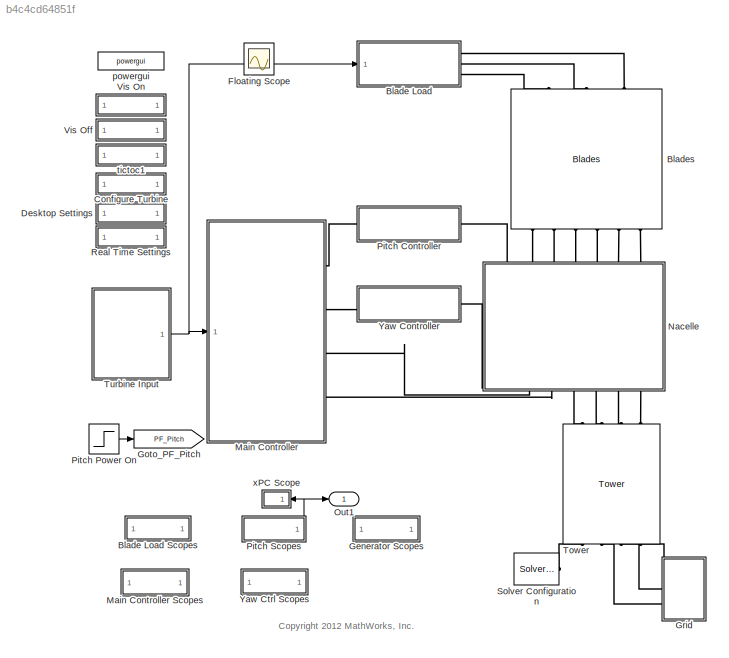
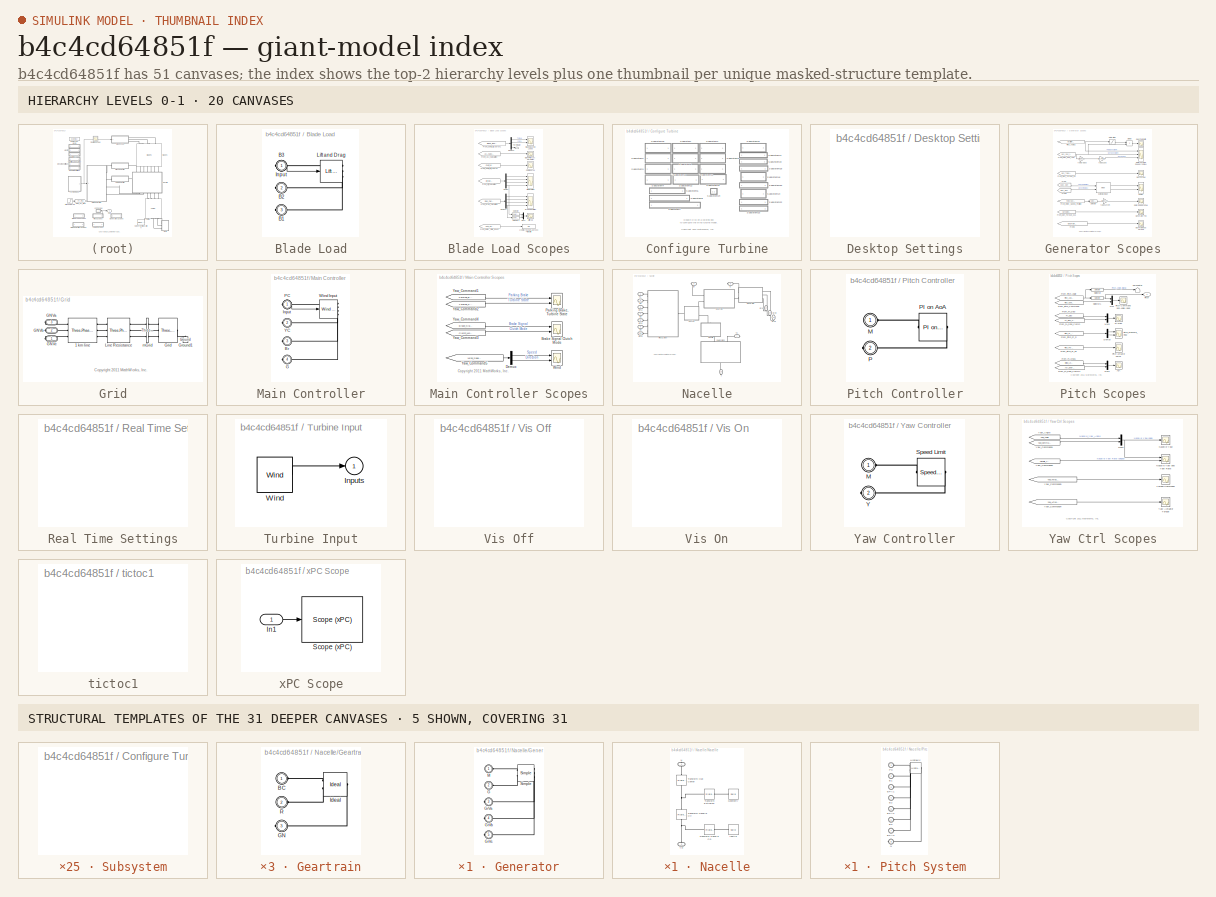
[diagram: thumbnail index - top-2 hierarchy levels (20 canvases) + 5 structural-template representatives of the remaining 31 canvases]
MODEL slx_b4c4cd64851f
KIND model
CONFIG PostLoadFcn = warning off Simulink:blocks:MatchingGotoNotFound\nwarning off Simulink:blocks:MatchingFromNotFound\nwarning('off','Simulink:SL_OutputNotConnected');\nwarning off Simulink:Engine:SaveWithParameterizedLinks_Warning\nwarning off Simulink:Engine:SaveWithDisabledLinks_Warning\nwarning('off','Simulink:fixpoint:fxpParameterPrecisionLoss');\nwarning off Simulink:blocks:DTConversionUncessary\nwarning off ne_sli:s...<+152ch>
CONFIG PreLoadFcn = warning off Simulink:Commands:LoadMdlParameterizedLink
CONFIG StartFcn = tic
CONFIG StopFcn = Elapsed_Sim_Time = toc;\ndisp(['Elapsed time is ' num2str(Elapsed_Sim_Time)]);
BLOCK [SubSystem] Blade Load
  AttributesFormatString = %<BlockChoice>
  BlockChoice = Lift and Drag
  FunctionWithSeparateData = off
  MaskHideContents = off
  MemberBlocks = Lift and Drag,Lift and Drag (Simscape),Segments,Torque
  MinAlgLoopOccurrences = off
  Opaque = off
  Ports = [1, 0, 0, 0, 0, 0, 3]
  PropExecContextOutsideSubsystem = off
  RTWSystemCode = Auto
  RequestExecContextInheritance = off
  TemplateBlock = Wind_Lib/Blade Load
BLOCK [SubSystem] Blade Load Scopes
  AncestorBlock = Wind_Lib/Blade Load Scopes
  FunctionWithSeparateData = off
  MaskHideContents = off
  MinAlgLoopOccurrences = off
  Opaque = off
  Ports = []
  PropExecContextOutsideSubsystem = off
  RTWSystemCode = Auto
  RequestExecContextInheritance = off
BLOCK [Display] Blade Load Scopes/1 = Heli 2 = Young's Approx 3 = Windmill
  Decimation = 1
  Lockdown = off
  Ports = [1]
BLOCK [Scope] Blade Load Scopes/Blade Bearing Loads
  DataFormat = StructureWithTime
  Floating = off
  LimitDataPoints = off
  NumInputPorts = 2
  Ports = [2]
  SampleTime = 0
  SaveName = ScopeData10
  ShowLegends = off
  TimeRange = 80
  YMax = 4000000~500000
  YMin = -2000000~-500000
  ZoomMode = yonly
BLOCK [Scope] Blade Load Scopes/Blade Pitch, AoA Zero Pitch
  DataFormat = StructureWithTime
  Floating = off
  LimitDataPoints = off
  NumInputPorts = 1
  Ports = [1]
  SampleTime = 0
  SaveName = ScopeData3
  ShowLegends = off
  TimeRange = 400
  YMax = 100
  YMin = 0
  ZoomMode = yonly
BLOCK [Scope] Blade Load Scopes/Coeff Approx
  DataFormat = StructureWithTime
  Floating = off
  LimitDataPoints = off
  NumInputPorts = 1
  Ports = [1]
  SampleTime = 0
  SaveName = ScopeData4
  ShowLegends = off
  TimeRange = 400
  YMax = 0.01794057021302797
  YMin = -0.1139986551164904
  ZoomMode = yonly
BLOCK [Demux] Blade Load Scopes/Demux
  DisplayOption = bar
  Outputs = [1 3 3 3]
  Ports = [1, 4]
BLOCK [Demux] Blade Load Scopes/Demux1
  DisplayOption = bar
  Outputs = [1 3 3 3]
  Ports = [1, 4]
BLOCK [Demux] Blade Load Scopes/Demux2
  DisplayOption = bar
  Outputs = [3 3 12]
  Ports = [1, 3]
BLOCK [Scope] Blade Load Scopes/Drag Calculation
  DataFormat = StructureWithTime
  Floating = off
  LimitDataPoints = off
  NumInputPorts = 4
  Ports = [4]
  SampleTime = 0
  SaveName = ScopeData5
  ShowLegends = off
  TimeRange = 400
  YMax = 4000~100~6000~6000
  YMin = -2000~-50~0~0
  ZoomMode = yonly
BLOCK [From] Blade Load Scopes/From_AoA_Calculation
  CloseFcn = tagdialog Close
  GotoTag = AoA_Calculation
BLOCK [From] Blade Load Scopes/From_Coeff_Lift_Approx
  CloseFcn = tagdialog Close
  GotoTag = Coeff_Lift_Approx
BLOCK [From] Blade Load Scopes/From_Coeff_Lift_Approx1
  CloseFcn = tagdialog Close
  GotoTag = Blade_Bearing_Loads
  TagVisibility = global
BLOCK [From] Blade Load Scopes/From_Drag_Calculation
  CloseFcn = tagdialog Close
  GotoTag = Drag_Calculation
BLOCK [From] Blade Load Scopes/From_Lift_Calculation
  CloseFcn = tagdialog Close
  GotoTag = Lift_Calculation
BLOCK [From] Blade Load Scopes/From_Rotor_State_Enum
  CloseFcn = tagdialog Close
  GotoTag = Rotor_State_Enum
BLOCK [Scope] Blade Load Scopes/Lift Calculation
  DataFormat = StructureWithTime
  Floating = off
  LimitDataPoints = off
  NumInputPorts = 4
  Ports = [4]
  SampleTime = 0
  SaveName = ScopeData2
  ShowLegends = off
  TimeRange = 400
  YMax = 2000~100~1.5~100000
  YMin = 0~-50~-0.5~-50000
  ZoomMode = yonly
BLOCK [Scope] Blade Load Scopes/Lift, Drag
  DataFormat = StructureWithTime
  Floating = off
  LimitDataPoints = off
  NumInputPorts = 1
  Ports = [1]
  SampleTime = 0
  SaveName = ScopeData1
  ShowLegends = off
  TimeRange = 160
  YMax = 408.3026221352307
  YMin = -250.4351759669439
  ZoomMode = yonly
BLOCK [Mux] Blade Load Scopes/Mux1
  DisplayOption = bar
  Inputs = 2
  Ports = [2, 1]
BLOCK [Selector] Blade Load Scopes/Selector
  IndexOptions = Index vector (dialog)
  Indices = [1]
  InputPortWidth = 3
  OutputSizes = 1
  Ports = [1, 1]
BLOCK [Selector] Blade Load Scopes/Selector1
  IndexOptions = Index vector (dialog)
  Indices = [1 3]
  InputPortWidth = 3
  OutputSizes = 1
  Ports = [1, 1]
BLOCK [Terminator] Blade Load Scopes/Terminator
BLOCK [PMIOPort] Blade Load/B1
  Port = 3
  Side = Right
BLOCK [PMIOPort] Blade Load/B2
  Port = 2
  Side = Right
BLOCK [PMIOPort] Blade Load/B3
  Port = 1
  Side = Right
BLOCK [Inport] Blade Load/Input
  IconDisplay = Port number
BLOCK [Reference] Blade Load/Lift and Drag  REF=Wind_Lib/Lift and Drag
  FunctionWithSeparateData = off
  GeneratePreprocessorConditionals = off
  Ports = [1, 0, 0, 0, 0, 0, 3]
  ShowPortLabels = FromPortIcon
  SourceBlock = Wind_Lib/Lift and Drag
  SystemSampleTime = -1
BLOCK [Reference] Blades  REF=Blades_Lib/Blades
  FunctionWithSeparateData = off
  GeneratePreprocessorConditionals = off
  Ports = [0, 0, 0, 0, 0, 6, 3]
  ShowPortLabels = FromPortBlockName
  SourceBlock = Blades_Lib/Blades
  SystemSampleTime = -1
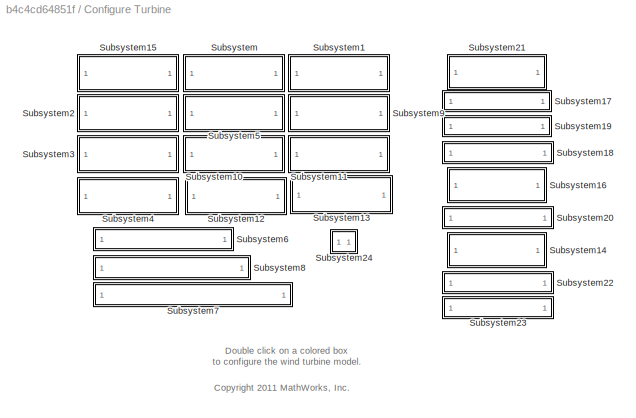
BLOCK [SubSystem] Configure Turbine
  FunctionWithSeparateData = off
  MaskHideContents = off
  MinAlgLoopOccurrences = off
  Opaque = off
  Ports = []
  PropExecContextOutsideSubsystem = off
  RTWSystemCode = Auto
  RequestExecContextInheritance = off
BLOCK [SubSystem] Configure Turbine/Subsystem
  FunctionWithSeparateData = off
  MaskHideContents = off
  MinAlgLoopOccurrences = off
  Opaque = off
  OpenFcn = Select_Turbine_Systems('I_Pitch Test', WT_Configs)
  Ports = []
  PropExecContextOutsideSubsystem = off
  RTWSystemCode = Auto
  RequestExecContextInheritance = off
BLOCK [SubSystem] Configure Turbine/Subsystem1
  FunctionWithSeparateData = off
  MaskHideContents = off
  MinAlgLoopOccurrences = off
  Opaque = off
  OpenFcn = Select_Turbine_Systems('H_Pitch Test', WT_Configs)
  Ports = []
  PropExecContextOutsideSubsystem = off
  RTWSystemCode = Auto
  RequestExecContextInheritance = off
BLOCK [SubSystem] Configure Turbine/Subsystem10
  FunctionWithSeparateData = off
  MaskHideContents = off
  MinAlgLoopOccurrences = off
  Opaque = off
  OpenFcn = Select_Turbine_Systems('I_Pitch IM_Yaw Test', WT_Configs)
  Ports = []
  PropExecContextOutsideSubsystem = off
  RTWSystemCode = Auto
  RequestExecContextInheritance = off
BLOCK [SubSystem] Configure Turbine/Subsystem11
  FunctionWithSeparateData = off
  MaskHideContents = off
  MinAlgLoopOccurrences = off
  Opaque = off
  OpenFcn = Select_Turbine_Systems('H_Pitch IM_Yaw Test', WT_Configs)
  Ports = []
  PropExecContextOutsideSubsystem = off
  RTWSystemCode = Auto
  RequestExecContextInheritance = off
BLOCK [SubSystem] Configure Turbine/Subsystem12
  FunctionWithSeparateData = off
  MaskHideContents = off
  MinAlgLoopOccurrences = off
  Opaque = off
  OpenFcn = Select_Turbine_Systems('I_Pitch S_Yaw Test', WT_Configs)
  Ports = []
  PropExecContextOutsideSubsystem = off
  RTWSystemCode = Auto
  RequestExecContextInheritance = off
BLOCK [SubSystem] Configure Turbine/Subsystem13
  FunctionWithSeparateData = off
  MaskHideContents = off
  MinAlgLoopOccurrences = off
  Opaque = off
  OpenFcn = Select_Turbine_Systems('H_Pitch S_Yaw Test', WT_Configs)
  Ports = []
  PropExecContextOutsideSubsystem = off
  RTWSystemCode = Auto
  RequestExecContextInheritance = off
BLOCK [SubSystem] Configure Turbine/Subsystem14
  FunctionWithSeparateData = off
  MaskHideContents = off
  MinAlgLoopOccurrences = off
  Opaque = off
  OpenFcn = Compare_Yaw_Actuators;
  Ports = []
  PropExecContextOutsideSubsystem = off
  RTWSystemCode = Auto
  RequestExecContextInheritance = off
BLOCK [SubSystem] Configure Turbine/Subsystem15
  FunctionWithSeparateData = off
  MaskHideContents = off
  MinAlgLoopOccurrences = off
  Opaque = off
  Ports = []
  PropExecContextOutsideSubsystem = off
  RTWSystemCode = Auto
  RequestExecContextInheritance = off
BLOCK [SubSystem] Configure Turbine/Subsystem16
  FunctionWithSeparateData = off
  MaskHideContents = off
  MinAlgLoopOccurrences = off
  Opaque = off
  OpenFcn = Compare_Pitch_Actuators;
  Ports = []
  PropExecContextOutsideSubsystem = off
  RTWSystemCode = Auto
  RequestExecContextInheritance = off
BLOCK [SubSystem] Configure Turbine/Subsystem17
  FunctionWithSeparateData = off
  MaskHideContents = off
  MinAlgLoopOccurrences = off
  Opaque = off
  OpenFcn = Pitch_Actuation_Linkage
  Ports = []
  PropExecContextOutsideSubsystem = off
  RTWSystemCode = Auto
  RequestExecContextInheritance = off
BLOCK [SubSystem] Configure Turbine/Subsystem18
  FunctionWithSeparateData = off
  MaskHideContents = off
  MinAlgLoopOccurrences = off
  Opaque = off
  OpenFcn = Pitch_Actuation_Hydraulic_Testrig
  Ports = []
  PropExecContextOutsideSubsystem = off
  RTWSystemCode = Auto
  RequestExecContextInheritance = off
BLOCK [SubSystem] Configure Turbine/Subsystem19
  FunctionWithSeparateData = off
  MaskHideContents = off
  MinAlgLoopOccurrences = off
  Opaque = off
  OpenFcn = Pitch_Control_Ideal_Testrig
  Ports = []
  PropExecContextOutsideSubsystem = off
  RTWSystemCode = Auto
  RequestExecContextInheritance = off
BLOCK [SubSystem] Configure Turbine/Subsystem2
  FunctionWithSeparateData = off
  MaskHideContents = off
  MinAlgLoopOccurrences = off
  Opaque = off
  OpenFcn = Select_Turbine_Systems('IA_Yaw Test', WT_Configs)
  Ports = []
  PropExecContextOutsideSubsystem = off
  RTWSystemCode = Auto
  RequestExecContextInheritance = off
BLOCK [SubSystem] Configure Turbine/Subsystem20
  FunctionWithSeparateData = off
  MaskHideContents = off
  MinAlgLoopOccurrences = off
  Opaque = off
  OpenFcn = Yaw_Actuation_Testrig
  Ports = []
  PropExecContextOutsideSubsystem = off
  RTWSystemCode = Auto
  RequestExecContextInheritance = off
BLOCK [SubSystem] Configure Turbine/Subsystem21
  FunctionWithSeparateData = off
  MaskHideContents = off
  MinAlgLoopOccurrences = off
  Opaque = off
  Ports = []
  PropExecContextOutsideSubsystem = off
  RTWSystemCode = Auto
  RequestExecContextInheritance = off
BLOCK [SubSystem] Configure Turbine/Subsystem22
  FunctionWithSeparateData = off
  MaskHideContents = off
  MinAlgLoopOccurrences = off
  Opaque = off
  OpenFcn = Generator_Testrig
  Ports = []
  PropExecContextOutsideSubsystem = off
  RTWSystemCode = Auto
  RequestExecContextInheritance = off
BLOCK [SubSystem] Configure Turbine/Subsystem23
  FunctionWithSeparateData = off
  MaskHideContents = off
  MinAlgLoopOccurrences = off
  Opaque = off
  OpenFcn = Turbine_State_Machine_Testrig
  Ports = []
  PropExecContextOutsideSubsystem = off
  RTWSystemCode = Auto
  RequestExecContextInheritance = off
BLOCK [SubSystem] Configure Turbine/Subsystem24
  FunctionWithSeparateData = off
  MaskHideContents = off
  MinAlgLoopOccurrences = off
  Opaque = off
  OpenFcn = Select_Turbine_Systems('H_Pitch S_Yaw Ge Gn Lift_Drag', WT_Configs)
  Ports = []
  PropExecContextOutsideSubsystem = off
  RTWSystemCode = Auto
  RequestExecContextInheritance = off
BLOCK [SubSystem] Configure Turbine/Subsystem3
  FunctionWithSeparateData = off
  MaskHideContents = off
  MinAlgLoopOccurrences = off
  Opaque = off
  OpenFcn = Select_Turbine_Systems('IM_Yaw Test', WT_Configs)
  Ports = []
  PropExecContextOutsideSubsystem = off
  RTWSystemCode = Auto
  RequestExecContextInheritance = off
BLOCK [SubSystem] Configure Turbine/Subsystem4
  FunctionWithSeparateData = off
  MaskHideContents = off
  MinAlgLoopOccurrences = off
  Opaque = off
  OpenFcn = Select_Turbine_Systems('S_Yaw Test', WT_Configs)
  Ports = []
  PropExecContextOutsideSubsystem = off
  RTWSystemCode = Auto
  RequestExecContextInheritance = off
BLOCK [SubSystem] Configure Turbine/Subsystem5
  FunctionWithSeparateData = off
  MaskHideContents = off
  MinAlgLoopOccurrences = off
  Opaque = off
  OpenFcn = Select_Turbine_Systems('I_Pitch IA_Yaw Test', WT_Configs)
  Ports = []
  PropExecContextOutsideSubsystem = off
  RTWSystemCode = Auto
  RequestExecContextInheritance = off
BLOCK [SubSystem] Configure Turbine/Subsystem6
  FunctionWithSeparateData = off
  MaskHideContents = off
  MinAlgLoopOccurrences = off
  Opaque = off
  OpenFcn = Select_Turbine_Systems('I_Pitch IA_Yaw Lift_Drag', WT_Configs)
  Ports = []
  PropExecContextOutsideSubsystem = off
  RTWSystemCode = Auto
  RequestExecContextInheritance = off
BLOCK [SubSystem] Configure Turbine/Subsystem7
  FunctionWithSeparateData = off
  MaskHideContents = off
  MinAlgLoopOccurrences = off
  Opaque = off
  OpenFcn = Select_Turbine_Systems('I_Pitch IA_Yaw Ge Gn Lift_Drag', WT_Configs)
  Ports = []
  PropExecContextOutsideSubsystem = off
  RTWSystemCode = Auto
  RequestExecContextInheritance = off
BLOCK [SubSystem] Configure Turbine/Subsystem8
  FunctionWithSeparateData = off
  MaskHideContents = off
  MinAlgLoopOccurrences = off
  Opaque = off
  OpenFcn = Select_Turbine_Systems('I_Pitch IA_Yaw Ge Lift_Drag', WT_Configs)
  Ports = []
  PropExecContextOutsideSubsystem = off
  RTWSystemCode = Auto
  RequestExecContextInheritance = off
BLOCK [SubSystem] Configure Turbine/Subsystem9
  FunctionWithSeparateData = off
  MaskHideContents = off
  MinAlgLoopOccurrences = off
  Opaque = off
  OpenFcn = Select_Turbine_Systems('H_Pitch IA_Yaw Test', WT_Configs)
  Ports = []
  PropExecContextOutsideSubsystem = off
  RTWSystemCode = Auto
  RequestExecContextInheritance = off
BLOCK [SubSystem] Desktop Settings
  FunctionWithSeparateData = off
  MaskHideContents = off
  MinAlgLoopOccurrences = off
  Opaque = off
  OpenFcn = set_param(bdroot,'Solver','ODE23t','MaxStep','0.01');                            \n                                                                                 \ntvar_solverBlock = find_system(bdroot, 'SubClassName', 'solver');                \n                                                                                 \nfor i=1:size(tvar_solverBlock,1)                                        ...<+360ch>
  Ports = []
  PropExecContextOutsideSubsystem = off
  RTWSystemCode = Auto
  RequestExecContextInheritance = off
BLOCK [Scope] Floating Scope
  DataFormat = StructureWithTime
  Floating = on
  IOType = viewer
  NumInputPorts = 1
  Ports = []
  SampleTime = 0
  ShowLegends = off
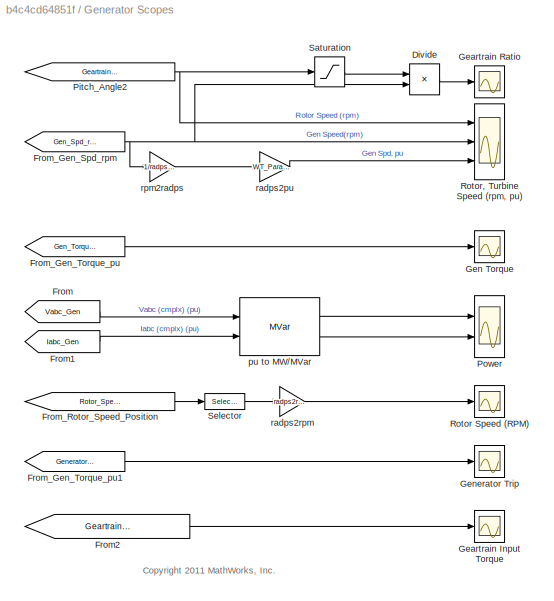
BLOCK [SubSystem] Generator Scopes
  AncestorBlock = Generator_Lib/Generator Scopes
  FunctionWithSeparateData = off
  MaskHideContents = off
  MinAlgLoopOccurrences = off
  Opaque = off
  Ports = []
  PropExecContextOutsideSubsystem = off
  RTWSystemCode = Auto
  RequestExecContextInheritance = off
BLOCK [Product] Generator Scopes/Divide
  InputSameDT = off
  Inputs = /*
  OutDataTypeStr = Inherit: Inherit via internal rule
  Ports = [2, 1]
  RndMeth = Floor
  SaturateOnIntegerOverflow = off
BLOCK [From] Generator Scopes/From
  CloseFcn = tagdialog Close
  GotoTag = Vabc_Gen
  TagVisibility = global
BLOCK [From] Generator Scopes/From1
  CloseFcn = tagdialog Close
  GotoTag = Iabc_Gen
  TagVisibility = global
BLOCK [From] Generator Scopes/From2
  CloseFcn = tagdialog Close
  GotoTag = Geartrain_Input_Torque
  TagVisibility = global
BLOCK [From] Generator Scopes/From_Gen_Spd_rpm
  CloseFcn = tagdialog Close
  GotoTag = Gen_Spd_rpm
  TagVisibility = global
BLOCK [From] Generator Scopes/From_Gen_Torque_pu
  CloseFcn = tagdialog Close
  GotoTag = Gen_Torque_pu
  TagVisibility = global
BLOCK [From] Generator Scopes/From_Gen_Torque_pu1
  CloseFcn = tagdialog Close
  GotoTag = Generator_Trip
BLOCK [From] Generator Scopes/From_Rotor_Speed_Position
  CloseFcn = tagdialog Close
  GotoTag = Rotor_Speed_Position
  TagVisibility = global
BLOCK [Scope] Generator Scopes/Geartrain Input Torque
  DataFormat = StructureWithTime
  Floating = off
  LimitDataPoints = off
  NumInputPorts = 1
  Ports = [1]
  SampleTime = 0
  SaveName = Geartrain_Input_Torque_DATA
  SaveToWorkspace = on
  ShowLegends = off
  TimeRange = 80
  YMax = -2250
  YMin = -4000
  ZoomMode = xonly
BLOCK [Scope] Generator Scopes/Geartrain Ratio
  DataFormat = StructureWithTime
  Floating = off
  LimitDataPoints = off
  NumInputPorts = 1
  Ports = [1]
  SampleTime = 0
  SaveName = ScopeData4
  ShowLegends = off
  YMax = 85
  YMin = 70
  ZoomMode = yonly
BLOCK [Scope] Generator Scopes/Gen Torque
  DataFormat = StructureWithTime
  Floating = off
  LimitDataPoints = off
  NumInputPorts = 1
  Ports = [1]
  SampleTime = 0
  SaveName = ScopeData8
  ShowLegends = off
  ZoomMode = yonly
BLOCK [Scope] Generator Scopes/Generator Trip
  DataFormat = StructureWithTime
  Floating = off
  LimitDataPoints = off
  NumInputPorts = 1
  Ports = [1]
  SampleTime = 0
  SaveName = Generator_Trip_DATA
  SaveToWorkspace = on
  ShowLegends = off
  ZoomMode = yonly
BLOCK [From] Generator Scopes/Pitch_Angle2
  CloseFcn = tagdialog Close
  GotoTag = Geartrain_Input_Speed
  TagVisibility = global
BLOCK [Scope] Generator Scopes/Power
  DataFormat = StructureWithTime
  Floating = off
  LimitDataPoints = off
  NumInputPorts = 2
  Ports = [2]
  SampleTime = 0
  SaveName = Generator_Power_DATA
  SaveToWorkspace = on
  ShowLegends = off
  TimeRange = 80
  YMax = 4000000~0
  YMin = -6000000~-6000000
  ZoomMode = yonly
BLOCK [Scope] Generator Scopes/Rotor Speed (RPM)
  DataFormat = StructureWithTime
  Floating = off
  LimitDataPoints = off
  NumInputPorts = 1
  Ports = [1]
  SampleTime = 0
  SaveName = ScopeData6
  ShowLegends = off
  TimeRange = 80
  YMax = 15
  YMin = 0
  ZoomMode = yonly
BLOCK [Scope] Generator Scopes/Rotor, Turbine Speed (rpm, pu)
  DataFormat = StructureWithTime
  Floating = off
  LimitDataPoints = off
  NumInputPorts = 3
  Ports = [3]
  SampleTime = 0
  SaveName = Generator_Speed_DATA
  SaveToWorkspace = on
  ShowLegends = off
  YMax = 15.5~1300~1.1
  YMin = 13.5~1100~0.9
  ZoomMode = yonly
BLOCK [Saturate] Generator Scopes/Saturation
  InputPortMap = u0
  LowerLimit = eps
  Ports = [1, 1]
  UpperLimit = inf
BLOCK [Selector] Generator Scopes/Selector
  IndexOptions = Index vector (dialog)
  Indices = [2]
  InputPortWidth = 2
  OutputSizes = 1
  Ports = [1, 1]
BLOCK [Reference] Generator Scopes/pu to MW//MVar  REF=Generator_Lib/Generator Scopes/pu to MW//MVar
  Ports = [2, 2]
  SourceBlock = Generator_Lib/Generator Scopes/pu to MW//MVar
  SourceType = SubSystem
BLOCK [Gain] Generator Scopes/radps2pu
  Gain = WT_Params.Generator.radps2pu
  OutDataTypeStr = Inherit: Inherit via internal rule
  ParamDataTypeStr = Inherit: Inherit via internal rule
  SaturateOnIntegerOverflow = off
BLOCK [Gain] Generator Scopes/radps2rpm
  Gain = radps2rpm
  OutDataTypeStr = Inherit: Inherit via internal rule
  ParamDataTypeStr = Inherit: Inherit via internal rule
  SaturateOnIntegerOverflow = off
BLOCK [Gain] Generator Scopes/rpm2radps
  Gain = 1/radps2rpm
  OutDataTypeStr = Inherit: Inherit via internal rule
  ParamDataTypeStr = Inherit: Inherit via internal rule
  SaturateOnIntegerOverflow = off
BLOCK [Goto] Goto_PF_Pitch
  GotoTag = PF_Pitch
  TagVisibility = global
BLOCK [SubSystem] Grid
  FunctionWithSeparateData = off
  MaskHideContents = off
  MinAlgLoopOccurrences = off
  Opaque = off
  Ports = [0, 0, 0, 0, 0, 0, 3]
  PropExecContextOutsideSubsystem = off
  RTWSystemCode = Auto
  RequestExecContextInheritance = off
BLOCK [Reference] Grid/1 km line   REF=powerlib/Elements/Three-Phase
PI Section Line
  AttributesFormatString = \n
  Capacitances = [11.33e-009 5.01e-009]
  Frequency = WT_Params.Grid.frequency
  Inductances = [1.05e-3 3.32e-3]
  LConnTagsString = a|b|c
  Length = 1
  Ports = [0, 0, 0, 0, 0, 3, 3]
  RConnTagsString = A|B|C
  Resistances = [0.1153 0.413]
  SourceBlock = powerlib/Elements/Three-Phase\nPI Section Line
  SourceType = Three-Phase PI Section Line
BLOCK [PMIOPort] Grid/GNVa
  Port = 3
  Side = Right
BLOCK [PMIOPort] Grid/GNVb
  Port = 2
  Side = Right
BLOCK [PMIOPort] Grid/GNVc
  Port = 1
  Side = Right
BLOCK [Reference] Grid/Grid  REF=powerlib/Electrical
Sources/Three-Phase
Programmable
Voltage Source
  Amplitudes = [1.0  0.5  1.0 ]
  BusType = swing
  HarmonicA = [1 -0.1 0 1]
  HarmonicB = [2 0.15 35 2]
  HarmonicGeneration = off
  Ports = [0, 0, 0, 0, 0, 1, 3]
  PositiveSequence = [WT_Params.Grid.voltage 0 WT_Params.Grid.frequency]
  Pref = 0
  Qmax = inf
  Qmin = -inf
  Qref = 0
  SourceBlock = powerlib/Electrical\nSources/Three-Phase\nProgrammable\nVoltage Source
  SourceType = Three-Phase Programmable Voltage Source
  TimeValues = [0  10  10.1]
  Timing = [5  5.5]
  VariationEntity = None
  VariationFrequency = 2
  VariationMagnitude = 0.3
  VariationPhaseA = off
  VariationRate = 10
  VariationStep = -0.15
  VariationTiming = [5 5.5]
  VariationType = Table of time-amplitude pairs
  VariationTypeAlt = Step
BLOCK [Reference] Grid/Ground1  REF=powerlib/Elements/Ground
  AttributesFormatString = \n
  LConnTagsString = a
  Ports = [0, 0, 0, 0, 0, 1]
  SourceBlock = powerlib/Elements/Ground
  SourceType = Ground
BLOCK [Reference] Grid/Line Resistance  REF=powerlib/Elements/Three-Phase
Mutual Inductance
Z1-Z0
  AttributesFormatString = \n
  LConnTagsString = a|b|c
  Ports = [0, 0, 0, 0, 0, 3, 3]
  PositiveSequence = [0.1  1.0/(2*pi*60)]*WT_Params.Grid.voltage^2/2500e6
  RConnTagsString = A|B|C
  SourceBlock = powerlib/Elements/Three-Phase\nMutual Inductance\nZ1-Z0
  SourceType = Three-Phase Mutual Inductance Z1-Z0
  ZeroSequence = [0.3  3.0/(2*pi*60)]*WT_Params.Grid.voltage^2/2500e6
BLOCK [Reference] Grid/mGrid  REF=powerlib/Measurements/Three-Phase
V-I Measurement
  CurrentMeasurement = no
  Ipu = off
  LabelI = ImGrid
  LabelV = VmGrid
  OutputType = Magnitude
  PSBequivalent = 0
  Pbase = 1.5e6/0.9
  PhasorSimulation = on
  Ports = [0, 0, 0, 0, 0, 3, 3]
  SetLabelI = on
  SetLabelV = on
  SourceBlock = powerlib/Measurements/Three-Phase\nV-I Measurement
  SourceType = Three-Phase VI Measurement
  Vbase = 25e3
  VoltageMeasurement = phase-to-ground
  Vpu = on
  VpuLL = off
BLOCK [SubSystem] Main Controller
  AttributesFormatString = %<BlockChoice>
  BlockChoice = Wind Input
  FunctionWithSeparateData = off
  MaskHideContents = off
  MemberBlocks = Direct Input,Wind Input
  MinAlgLoopOccurrences = off
  Opaque = off
  Ports = [1, 0, 0, 0, 0, 0, 4]
  PropExecContextOutsideSubsystem = off
  RTWSystemCode = Auto
  RequestExecContextInheritance = off
  TemplateBlock = Main_Controller_Lib/Main Controller
BLOCK [SubSystem] Main Controller Scopes
  AncestorBlock = Main_Controller_Lib/Main Controller Scopes
  FunctionWithSeparateData = off
  MaskHideContents = off
  MinAlgLoopOccurrences = off
  Opaque = off
  Ports = []
  PropExecContextOutsideSubsystem = off
  RTWSystemCode = Auto
  RequestExecContextInheritance = off
BLOCK [Scope] Main Controller Scopes/Brake Signal Clutch Mode
  DataFormat = StructureWithTime
  Floating = off
  LimitDataPoints = off
  NumInputPorts = 2
  Ports = [2]
  SampleTime = 0
  SaveName = ScopeData9
  ShowLegends = off
  TimeRange = 80
  YMax = 1~3
  YMin = -1~1
BLOCK [Demux] Main Controller Scopes/Demux
  DisplayOption = bar
  Outputs = 2
  Ports = [1, 2]
BLOCK [Scope] Main Controller Scopes/Parking Brake, Turbine State
  DataFormat = StructureWithTime
  Floating = off
  LimitDataPoints = off
  NumInputPorts = 2
  Ports = [2]
  SampleTime = 0
  SaveName = ScopeData7
  ShowLegends = off
  TimeRange = 80
  YMax = 1~3
  YMin = 0~0
BLOCK [Scope] Main Controller Scopes/Wind
  DataFormat = StructureWithTime
  Floating = off
  LimitDataPoints = off
  NumInputPorts = 2
  Ports = [2]
  SampleTime = 0
  SaveName = Wind_Turbine_Wind_DATA
  SaveToWorkspace = on
  ShowLegends = off
  TimeRange = 80
  YMax = 20~5
  YMin = 0~-5
BLOCK [From] Main Controller Scopes/Yaw_Command1
  CloseFcn = tagdialog Close
  GotoTag = Parking_Brake
  TagVisibility = global
BLOCK [From] Main Controller Scopes/Yaw_Command2
  CloseFcn = tagdialog Close
  GotoTag = Turbine_State
  TagVisibility = global
BLOCK [From] Main Controller Scopes/Yaw_Command3
  CloseFcn = tagdialog Close
  GotoTag = Clutch_Mode
BLOCK [From] Main Controller Scopes/Yaw_Command4
  CloseFcn = tagdialog Close
  GotoTag = Brake_Signal
  TagVisibility = global
BLOCK [From] Main Controller Scopes/Yaw_Command5
  CloseFcn = tagdialog Close
  GotoTag = Wind_Speed_Direction
  TagVisibility = global
BLOCK [PMIOPort] Main Controller/Br
  Port = 3
  Side = Right
BLOCK [PMIOPort] Main Controller/G
  Port = 4
  Side = Right
BLOCK [Inport] Main Controller/Input
  IconDisplay = Port number
BLOCK [PMIOPort] Main Controller/PC
  Port = 1
  Side = Right
BLOCK [Reference] Main Controller/Wind Input  REF=Main_Controller_Lib/Wind Input
  FunctionWithSeparateData = off
  GeneratePreprocessorConditionals = off
  Ports = [1, 0, 0, 0, 0, 0, 4]
  ShowPortLabels = FromPortIcon
  SourceBlock = Main_Controller_Lib/Wind Input
  SystemSampleTime = -1
BLOCK [PMIOPort] Main Controller/YC
  Port = 2
  Side = Right
BLOCK [SubSystem] Nacelle
  FunctionWithSeparateData = off
  MaskHideContents = off
  MinAlgLoopOccurrences = off
  Opaque = off
  Ports = [0, 0, 0, 0, 0, 7, 7]
  PropExecContextOutsideSubsystem = off
  RTWSystemCode = Auto
  RequestExecContextInheritance = off
BLOCK [PMIOPort] Nacelle/B1
  Port = 2
  Side = Left
  Tag = PMCPort
BLOCK [PMIOPort] Nacelle/B2
  Port = 4
  Side = Left
  Tag = PMCPort
BLOCK [PMIOPort] Nacelle/B3
  Port = 6
  Side = Left
  Tag = PMCPort
BLOCK [PMIOPort] Nacelle/BPA1
  Port = 3
  Side = Left
  Tag = PMCPort
BLOCK [PMIOPort] Nacelle/BPA2
  Port = 5
  Side = Left
  Tag = PMCPort
BLOCK [PMIOPort] Nacelle/BPA3
  Port = 12
  Side = Left
  Tag = PMCPort
BLOCK [PMIOPort] Nacelle/Br
  Port = 8
  Side = Right
  Tag = PMCPort
BLOCK [PMIOPort] Nacelle/G
  Port = 9
  Side = Right
  Tag = PMCPort
BLOCK [SubSystem] Nacelle/Geartrain
  AttributesFormatString = %<BlockChoice>
  BlockChoice = Ideal
  FunctionWithSeparateData = off
  MaskHideContents = off
  MemberBlocks = Empty,Ideal
  MinAlgLoopOccurrences = off
  Opaque = off
  Ports = [0, 0, 0, 0, 0, 2, 1]
  PropExecContextOutsideSubsystem = off
  RTWSystemCode = Auto
  RequestExecContextInheritance = off
  ShowPortLabels = FromPortBlockName
  TemplateBlock = Geartrain_Lib/Geartrain
BLOCK [PMIOPort] Nacelle/Geartrain/BC
  Port = 1
  Side = Left
BLOCK [PMIOPort] Nacelle/Geartrain/GN
  Port = 3
  Side = Right
BLOCK [Reference] Nacelle/Geartrain/Ideal  REF=Geartrain_Lib/Ideal
  FunctionWithSeparateData = off
  GeneratePreprocessorConditionals = off
  Ports = [0, 0, 0, 0, 0, 2, 1]
  ShowPortLabels = FromPortIcon
  SourceBlock = Geartrain_Lib/Ideal
  SystemSampleTime = -1
BLOCK [PMIOPort] Nacelle/Geartrain/R
  Port = 2
  Side = Left
BLOCK [SubSystem] Nacelle/Generator
  AttributesFormatString = %<BlockChoice>
  BlockChoice = Simple
  FunctionWithSeparateData = off
  MaskHideContents = off
  MemberBlocks = Full,Simple
  MinAlgLoopOccurrences = off
  Opaque = off
  Ports = [0, 0, 0, 0, 0, 2, 3]
  PropExecContextOutsideSubsystem = off
  RTWSystemCode = Auto
  RequestExecContextInheritance = off
  TemplateBlock = Generator_Lib/Generator
BLOCK [PMIOPort] Nacelle/Generator/G
  Port = 2
  Side = Left
BLOCK [PMIOPort] Nacelle/Generator/GrVa
  Port = 3
  Side = Right
BLOCK [PMIOPort] Nacelle/Generator/GrVb
  Port = 4
  Side = Right
BLOCK [PMIOPort] Nacelle/Generator/GrVc
  Port = 5
  Side = Right
BLOCK [PMIOPort] Nacelle/Generator/M
  Port = 1
  Side = Left
BLOCK [Reference] Nacelle/Generator/Simple  REF=Generator_Lib/Simple
  FunctionWithSeparateData = off
  GeneratePreprocessorConditionals = off
  Ports = [0, 0, 0, 0, 0, 2, 3]
  ShowPortLabels = FromPortIcon
  SourceBlock = Generator_Lib/Simple
  SystemSampleTime = -1
BLOCK [PMIOPort] Nacelle/GrVa
  Port = 11
  Side = Right
  Tag = PMCPort
BLOCK [PMIOPort] Nacelle/GrVb
  Port = 13
  Side = Right
  Tag = PMCPort
BLOCK [PMIOPort] Nacelle/GrVc
  Port = 14
  Side = Right
  Tag = PMCPort
BLOCK [SubSystem] Nacelle/Hub Axis
  AttributesFormatString = %<BlockChoice>
  BlockChoice = Rotate
  FunctionWithSeparateData = off
  MaskHideContents = off
  MemberBlocks = Locked,Rotate
  MinAlgLoopOccurrences = off
  Opaque = off
  Ports = [0, 0, 0, 0, 0, 1, 2]
  PropExecContextOutsideSubsystem = off
  RTWSystemCode = Auto
  RequestExecContextInheritance = off
  TemplateBlock = Hub_Axis_Lib/Hub Axis
BLOCK [PMIOPort] Nacelle/Hub Axis/G
  Port = 2
  Side = Right
BLOCK [PMIOPort] Nacelle/Hub Axis/N
  Port = 3
  Side = Right
BLOCK [PMIOPort] Nacelle/Hub Axis/R
  Port = 1
  Side = Left
BLOCK [Reference] Nacelle/Hub Axis/Rotate  REF=Hub_Axis_Lib/Rotate
  FunctionWithSeparateData = off
  GeneratePreprocessorConditionals = off
  Ports = [0, 0, 0, 0, 0, 1, 2]
  ShowPortLabels = FromPortIcon
  SourceBlock = Hub_Axis_Lib/Rotate
  SystemSampleTime = -1
BLOCK [SubSystem] Nacelle/Nacelle
  FunctionWithSeparateData = off
  MaskHideContents = off
  MinAlgLoopOccurrences = off
  Opaque = off
  Ports = [0, 0, 0, 0, 0, 1, 1]
  PropExecContextOutsideSubsystem = off
  RTWSystemCode = Auto
  RequestExecContextInheritance = off
BLOCK [Reference] Nacelle/Nacelle/Geometry  REF=sm_lib/Body Elements/Solid
  BlockFunction = simmechanics.library.body_elements.solid
  BrickDimensionUnits = m
  BrickDimensions = [(WT_Params.Nacelle.length-WT_Params.Nacelle.Yaw_Ctr_Offset.x) WT_Params.Nacelle.Yaw_Ctr_Offset.y WT_Params.Nacelle.Yaw_Ctr_Offset.y]*2
  CenterOfMass = [0 0 0]
  CenterOfMassUnits = m
  ClassName = Solid
  CylinderLength = 1
  CylinderLengthUnits = m
  CylinderRadius = 1
  CylinderRadiusUnits = m
  Density = 1000
  DensityBased = on
  DensityUnits = kg/(m^3)
  EllipsoidRadii = [1 1 1]
  EllipsoidRadiiUnits = m
  ExtGeomFileUnits = m
  ExtrusionCrossSection = WT_Params.Nacelle.Geometry.profile
  ExtrusionCrossSectionUnits = m
  ExtrusionLength = WT_Params.Nacelle.length
  ExtrusionLengthUnits = m
  GeometryShape = GeneralExtrusion
  GraphicAmbientColor = [0.15 0.15 0.15 1.0]
  GraphicDiffuseColor = [0.8 0.8 0.8]
  GraphicEmissiveColor = [0.0 0.0 0.0 1.0]
  GraphicOpacity = 1.0
  GraphicShininess = 75
  GraphicSpecularColor = [0.5 0.5 0.5 1.0]
  GraphicType = FromGeometry
  GraphicVisPropType = SimpleVisualProperties
  InertiaType = PointMass
  MarkerShape = Sphere
  MarkerSize = 10
  MarkerSizeUnits = m
  Mass = 0.1
  MassUnits = kg
  MomentsOfInertia = [1 1 1]
  MomentsOfInertiaUnits = kg*m^2
  PolygonNumSides = 3
  PolygonOuterRadius = 1
  PolygonOuterRadiusUnits = m
  Ports = [0, 0, 0, 0, 0, 0, 1]
  ProductsOfInertia = [0 0 0]
  ProductsOfInertiaUnits = kg*m^2
  RectangleSize = [1 1]
  RectangleSizeUnits = m
  RevolutionAngle = 180
  RevolutionAngleUnits = deg
  RevolutionCrossSection = [1 1; 1 -1; 2 -1; 2 1]
  RevolutionCrossSectionUnits = m
  RevolutionExtent = Full
  SourceBlock = sm_lib/Body Elements/Solid
  SourceType = Solid
  SphereRadius = 1
  SphereRadiusUnits = m
BLOCK [Reference] Nacelle/Nacelle/Inertia  REF=sm_lib/Body Elements/Solid
  BlockFunction = simmechanics.library.body_elements.solid
  BrickDimensionUnits = m
  BrickDimensions = [1 1 1]
  CenterOfMass = [0 0 0]
  CenterOfMassUnits = m
  ClassName = Solid
  CylinderLength = 1
  CylinderLengthUnits = m
  CylinderRadius = 1
  CylinderRadiusUnits = m
  Density = 1000
  DensityBased = on
  DensityUnits = kg/(m^3)
  EllipsoidRadii = [1 1 1]
  EllipsoidRadiiUnits = m
  ExtGeomFileUnits = m
  ExtrusionCrossSection = [1 1; -1 1; -1 -1; 1 -1]
  ExtrusionCrossSectionUnits = m
  ExtrusionLength = 1
  ExtrusionLengthUnits = m
  GeometryShape = Sphere
  GraphicAmbientColor = [0.15 0.15 0.15 1.0]
  GraphicDiffuseColor = [0.8 0.8 0.8]
  GraphicEmissiveColor = [0.0 0.0 0.0 1.0]
  GraphicOpacity = 1.0
  GraphicShininess = 75
  GraphicSpecularColor = [0.5 0.5 0.5 1.0]
  GraphicType = FromGeometry
  GraphicVisPropType = SimpleVisualProperties
  InertiaType = Custom
  MarkerShape = Sphere
  MarkerSize = 10
  MarkerSizeUnits = m
  Mass = WT_Params.Nacelle.mass
  MassUnits = kg
  MomentsOfInertia = [WT_Params.Nacelle.inertia(1,1) WT_Params.Nacelle.inertia(3,3) WT_Params.Nacelle.inertia(2,2)]
  MomentsOfInertiaUnits = kg*m^2
  PolygonNumSides = 3
  PolygonOuterRadius = 1
  PolygonOuterRadiusUnits = m
  Ports = [0, 0, 0, 0, 0, 0, 1]
  ProductsOfInertia = [0 0 0]
  ProductsOfInertiaUnits = kg*m^2
  RectangleSize = [1 1]
  RectangleSizeUnits = m
  RevolutionAngle = 180
  RevolutionAngleUnits = deg
  RevolutionCrossSection = [1 1; 1 -1; 2 -1; 2 1]
  RevolutionCrossSectionUnits = m
  RevolutionExtent = Full
  SourceBlock = sm_lib/Body Elements/Solid
  SourceType = Solid
  SphereRadius = 0.1
  SphereRadiusUnits = m
BLOCK [PMIOPort] Nacelle/Nacelle/N
  Port = 1
  Side = Right
BLOCK [Reference] Nacelle/Nacelle/Transform Extrusion  REF=sm_lib/Frames and
 Transforms/Rigid 
Transform
  BaseAlignAxisA = +Y
  BaseAlignAxisB = +Z
  BlockFunction = simmechanics.library.frames_transforms.rigid_transform
  ClassName = RigidTransform
  FollAlignAxisA = +X
  FollAlignAxisB = +Y
  Ports = [0, 0, 0, 0, 0, 1, 1]
  RotationAngle = 90
  RotationAngleUnits = deg
  RotationArbitraryAxis = [0 0 1]
  RotationMethod = StandardAxis
  RotationStandardAxis = +Y
  SourceBlock = sm_lib/Frames and\n Transforms/Rigid \nTransform
  SourceType = Rigid Transform
  TranslationCartesianOffset = [0 0 0]
  TranslationLengthUnit = m
  TranslationMethod = Cartesian
  TranslationROffset = 0
  TranslationROffsetUnits = m
  TranslationStandardAxis = +Z
  TranslationStandardOffset = 1
  TranslationThetaOffset = 0
  TranslationThetaOffsetUnits = deg
  TranslationZOffset = 0
  TranslationZOffsetUnits = m
BLOCK [Reference] Nacelle/Nacelle/Transform Hub Center  REF=sm_lib/Frames and
 Transforms/Rigid 
Transform
  BaseAlignAxisA = +Y
  BaseAlignAxisB = +Z
  BlockFunction = simmechanics.library.frames_transforms.rigid_transform
  ClassName = RigidTransform
  FollAlignAxisA = +X
  FollAlignAxisB = +Y
  Ports = [0, 0, 0, 0, 0, 1, 1]
  RotationAngle = 90
  RotationAngleUnits = deg
  RotationArbitraryAxis = [0 0 1]
  RotationMethod = StandardAxis
  RotationStandardAxis = +Y
  SourceBlock = sm_lib/Frames and\n Transforms/Rigid \nTransform
  SourceType = Rigid Transform
  TranslationCartesianOffset = [0 0 0]
  TranslationLengthUnit = m
  TranslationMethod = StandardAxis
  TranslationROffset = 0
  TranslationROffsetUnits = m
  TranslationStandardAxis = +X
  TranslationStandardOffset = WT_Params.Nacelle.length/2
  TranslationThetaOffset = 0
  TranslationThetaOffsetUnits = deg
  TranslationZOffset = 0
  TranslationZOffsetUnits = m
BLOCK [Reference] Nacelle/Nacelle/Transform Nacelle CG  REF=sm_lib/Frames and
 Transforms/Rigid 
Transform
  BaseAlignAxisA = +Y
  BaseAlignAxisB = +Z
  BlockFunction = simmechanics.library.frames_transforms.rigid_transform
  ClassName = RigidTransform
  FollAlignAxisA = +X
  FollAlignAxisB = +Y
  Ports = [0, 0, 0, 0, 0, 1, 1]
  RotationAngle = 0
  RotationAngleUnits = deg
  RotationArbitraryAxis = [0 0 1]
  RotationMethod = None
  RotationStandardAxis = +Z
  SourceBlock = sm_lib/Frames and\n Transforms/Rigid \nTransform
  SourceType = Rigid Transform
  TranslationCartesianOffset = [-WT_Params.Nacelle.Yaw_Ctr_Offset.x+WT_Params.Nacelle.CG_Offset.x 0 WT_Params.Nacelle.Yaw_Ctr_Offset.y]
  TranslationLengthUnit = m
  TranslationMethod = Cartesian
  TranslationROffset = 0
  TranslationROffsetUnits = m
  TranslationStandardAxis = +Z
  TranslationStandardOffset = 1
  TranslationThetaOffset = 0
  TranslationThetaOffsetUnits = deg
  TranslationZOffset = 0
  TranslationZOffsetUnits = m
BLOCK [Reference] Nacelle/Nacelle/Transform Nacelle Ctr  REF=sm_lib/Frames and
 Transforms/Rigid 
Transform
  BaseAlignAxisA = +Y
  BaseAlignAxisB = +Z
  BlockFunction = simmechanics.library.frames_transforms.rigid_transform
  ClassName = RigidTransform
  FollAlignAxisA = +X
  FollAlignAxisB = +Y
  Ports = [0, 0, 0, 0, 0, 1, 1]
  RotationAngle = 0
  RotationAngleUnits = deg
  RotationArbitraryAxis = [0 0 1]
  RotationMethod = None
  RotationStandardAxis = +Z
  SourceBlock = sm_lib/Frames and\n Transforms/Rigid \nTransform
  SourceType = Rigid Transform
  TranslationCartesianOffset = [-WT_Params.Nacelle.length/2+3 0 WT_Params.Nacelle.Yaw_Ctr_Offset.y]
  TranslationLengthUnit = m
  TranslationMethod = Cartesian
  TranslationROffset = 0
  TranslationROffsetUnits = m
  TranslationStandardAxis = +Z
  TranslationStandardOffset = 1
  TranslationThetaOffset = 0
  TranslationThetaOffsetUnits = deg
  TranslationZOffset = 0
  TranslationZOffsetUnits = m
BLOCK [PMIOPort] Nacelle/Nacelle/YR
  Port = 2
  Side = Left
BLOCK [PMIOPort] Nacelle/PC
  Port = 1
  Side = Left
  Tag = PMCPort
BLOCK [SubSystem] Nacelle/Pitch System
  AttributesFormatString = %<BlockChoice>
  BlockChoice = Hydraulic
  FunctionWithSeparateData = off
  MaskHideContents = off
  MemberBlocks = Hydraulic,Ideal,Locked
  MinAlgLoopOccurrences = off
  Opaque = off
  Ports = [0, 0, 0, 0, 0, 7, 1]
  PropExecContextOutsideSubsystem = off
  RTWSystemCode = Auto
  RequestExecContextInheritance = off
  ShowPortLabels = FromPortBlockName
  TemplateBlock = Pitch_System_Lib/Pitch System
BLOCK [PMIOPort] Nacelle/Pitch System/B1
  Port = 2
  Side = Left
BLOCK [PMIOPort] Nacelle/Pitch System/B2
  Port = 4
  Side = Left
BLOCK [PMIOPort] Nacelle/Pitch System/B3
  Port = 6
  Side = Left
BLOCK [PMIOPort] Nacelle/Pitch System/BPA1
  Port = 3
  Side = Left
BLOCK [PMIOPort] Nacelle/Pitch System/BPA2
  Port = 5
  Side = Left
BLOCK [PMIOPort] Nacelle/Pitch System/BPA3
  Port = 7
  Side = Left
BLOCK [Reference] Nacelle/Pitch System/Hydraulic  REF=Pitch_System_Lib/Hydraulic
  FunctionWithSeparateData = off
  GeneratePreprocessorConditionals = off
  Ports = [0, 0, 0, 0, 0, 7, 1]
  ShowPortLabels = FromPortIcon
  SourceBlock = Pitch_System_Lib/Hydraulic
  SystemSampleTime = -1
BLOCK [PMIOPort] Nacelle/Pitch System/N
  Port = 8
  Side = Right
BLOCK [PMIOPort] Nacelle/Pitch System/PC
  Port = 1
  Side = Left
BLOCK [PMIOPort] Nacelle/T
  Port = 10
  Side = Right
  Tag = PMCPort
BLOCK [PMIOPort] Nacelle/YC
  Port = 7
  Side = Right
  Tag = PMCPort
BLOCK [SubSystem] Nacelle/Yaw System
  AttributesFormatString = %<BlockChoice>
  BlockChoice = Servomotor
  FunctionWithSeparateData = off
  MaskHideContents = off
  MemberBlocks = Ideal Actuator,Ideal Motor,Locked,Servomotor
  MinAlgLoopOccurrences = off
  Opaque = off
  Ports = [0, 0, 0, 0, 0, 1, 2]
  PropExecContextOutsideSubsystem = off
  RTWSystemCode = Auto
  RequestExecContextInheritance = off
  TemplateBlock = Yaw_System_Lib/Yaw System
BLOCK [PMIOPort] Nacelle/Yaw System/N
  Port = 2
  Side = Right
BLOCK [Reference] Nacelle/Yaw System/Servomotor  REF=Yaw_System_Lib/Servomotor
  FunctionWithSeparateData = off
  GeneratePreprocessorConditionals = off
  Ports = [0, 0, 0, 0, 0, 1, 2]
  ShowPortLabels = FromPortIcon
  SourceBlock = Yaw_System_Lib/Servomotor
  SystemSampleTime = -1
BLOCK [PMIOPort] Nacelle/Yaw System/T
  Port = 1
  Side = Left
BLOCK [PMIOPort] Nacelle/Yaw System/YC
  Port = 3
  Side = Right
BLOCK [Outport] Out1
  IconDisplay = Port number
BLOCK [SubSystem] Pitch Controller
  AttributesFormatString = %<BlockChoice>
  BlockChoice = PI on AoA
  FunctionWithSeparateData = off
  MaskHideContents = off
  MemberBlocks = Inner Loop,PI on AoA,PI on AoA Code
  MinAlgLoopOccurrences = off
  Opaque = off
  Ports = [0, 0, 0, 0, 0, 1, 1]
  PropExecContextOutsideSubsystem = off
  RTWSystemCode = Auto
  RequestExecContextInheritance = off
  TemplateBlock = Pitch_Controller_Lib/Pitch Controller
BLOCK [PMIOPort] Pitch Controller/M
  Port = 1
  Side = Left
BLOCK [PMIOPort] Pitch Controller/P
  Port = 2
  Side = Right
BLOCK [Reference] Pitch Controller/PI on AoA  REF=Pitch_Controller_Lib/PI on AoA
  FunctionWithSeparateData = off
  GeneratePreprocessorConditionals = off
  Ports = [0, 0, 0, 0, 0, 1, 1]
  ShowPortLabels = FromPortIcon
  SourceBlock = Pitch_Controller_Lib/PI on AoA
  SystemSampleTime = -1
BLOCK [Step] Pitch Power On
  After = 24
  Before = 24
  SampleTime = 0
  Time = 20
BLOCK [SubSystem] Pitch Scopes
  AncestorBlock = Pitch_Controller_Lib/Pitch Scopes
  FunctionWithSeparateData = off
  MaskHideContents = off
  MinAlgLoopOccurrences = off
  Opaque = off
  Ports = [0, 1]
  PropExecContextOutsideSubsystem = off
  RTWSystemCode = Auto
  RequestExecContextInheritance = off
BLOCK [Scope] Pitch Scopes/AoA
  DataFormat = StructureWithTime
  Floating = off
  LimitDataPoints = off
  NumInputPorts = 1
  Ports = [1]
  SampleTime = 0
  SaveName = ScopeData2
  ShowLegends = off
  TimeRange = 10
  YMax = -0.9
  YMin = -1.6
BLOCK [Demux] Pitch Scopes/Demux
  DisplayOption = bar
  Outputs = [2 1]
  Ports = [1, 2]
BLOCK [From] Pitch Scopes/From_PA_Disp
  CloseFcn = tagdialog Close
  GotoTag = PA_Disp
BLOCK [From] Pitch Scopes/From_PA_Disp1
  CloseFcn = tagdialog Close
  GotoTag = Inflow_Angle
  TagVisibility = global
BLOCK [From] Pitch Scopes/From_PA_Disp_Comm
  CloseFcn = tagdialog Close
  GotoTag = PA_Disp_Comm
BLOCK [From] Pitch Scopes/From_PA_Disp_Comm1
  CloseFcn = tagdialog Close
  GotoTag = AoA_Desired
  TagVisibility = global
BLOCK [From] Pitch Scopes/From_Pitch_Angle
  CloseFcn = tagdialog Close
  GotoTag = Pitch_Angle
  TagVisibility = global
BLOCK [From] Pitch Scopes/From_Pitch_Command
  CloseFcn = tagdialog Close
  GotoTag = Pitch_Command
  TagVisibility = global
BLOCK [From] Pitch Scopes/From_Pitch_Pr_Fl
  CloseFcn = tagdialog Close
  GotoTag = Pitch_Pr_Fl
  TagVisibility = global
BLOCK [From] Pitch Scopes/From_Pitch_Pr_Fl1
  CloseFcn = tagdialog Close
  GotoTag = Pitch_Force
  TagVisibility = global
BLOCK [Mux] Pitch Scopes/Mux
  DisplayOption = bar
  Inputs = 2
  Ports = [2, 1]
BLOCK [Mux] Pitch Scopes/Mux1
  DisplayOption = bar
  Inputs = 2
  Ports = [2, 1]
BLOCK [Mux] Pitch Scopes/Mux2
  DisplayOption = bar
  Inputs = 2
  Ports = [2, 1]
BLOCK [Scope] Pitch Scopes/PA Disp
  DataFormat = StructureWithTime
  Floating = off
  LimitDataPoints = off
  NumInputPorts = 1
  Ports = [1]
  SampleTime = 0
  SaveName = ScopeData1
  ShowLegends = off
  TimeRange = 10
  YMax = -0.9
  YMin = -1.6
BLOCK [Outport] Pitch Scopes/Pitch
  IconDisplay = Port number
BLOCK [Scope] Pitch Scopes/Pitch Actuator Force
  DataFormat = StructureWithTime
  Floating = off
  LimitDataPoints = off
  NumInputPorts = 1
  Ports = [1]
  SampleTime = 0
  SaveName = Pitch_Actuator_Force_DATA
  SaveToWorkspace = on
  ShowLegends = off
  TimeRange = 80
  YMax = 84375
  YMin = -78125
  ZoomMode = yonly
BLOCK [Scope] Pitch Scopes/Pitch Command and Angle (deg)
  DataFormat = StructureWithTime
  ExtModeUploadOption = log
  Floating = off
  LimitDataPoints = off
  NumInputPorts = 1
  Ports = [1]
  SampleTime = 0
  SaveName = Blade_Pitch_DATA
  SaveToWorkspace = on
  ShowLegends = off
  TimeRange = 80
  YMax = 80
  YMin = -20
BLOCK [Scope] Pitch Scopes/Pitch_Pressure_Flow
  DataFormat = StructureWithTime
  Floating = off
  LimitDataPoints = off
  NumInputPorts = 2
  Ports = [2]
  SampleTime = 0
  SaveName = ScopeData3
  ShowLegends = off
  YMax = 20~5
  YMin = -5~-5
BLOCK [Selector] Pitch Scopes/Selector
  IndexOptions = Index vector (dialog)
  Indices = [1 ]
  InputPortWidth = 3
  OutputSizes = 1
  Ports = [1, 1]
BLOCK [Selector] Pitch Scopes/Selector1
  IndexOptions = Index vector (dialog)
  Indices = [1 ]
  InputPortWidth = 3
  OutputSizes = 1
  Ports = [1, 1]
BLOCK [Terminator] Pitch Scopes/Terminator
BLOCK [SubSystem] Real Time Settings
  FunctionWithSeparateData = off
  MaskHideContents = off
  MinAlgLoopOccurrences = off
  Opaque = off
  OpenFcn = tvar_Nonlinear_Iterations = '3';                                                                                                                                                                        \nif(~exist('tvar_StepSize'))                                                                                                                                                                            ...<+2434ch>
  Ports = []
  PropExecContextOutsideSubsystem = off
  RTWSystemCode = Auto
  RequestExecContextInheritance = off
BLOCK [Reference] Solver Configuration  REF=nesl_utility/Solver
Configuration
  Accelerate = off
  DelaysMemoryBudget = 1024
  DoDC = off
  DoFixedCost = off
  EnableSwitchedLinearOptims = on
  FrequencyDomain = off
  Harmonics = []
  LeftPortType = input
  LinearAlgebra = Sparse
  LocalSolverChoice = NE_BACKWARD_EULER_ADVANCER
  LocalSolverSampleTime = 0.01
  MaxModeIter = 2
  MaxNonlinIter = 3
  PhysicalDomain = network_engine_domain
  Ports = [0, 0, 0, 0, 0, 0, 1]
  Profile = off
  ResidualTolerance = 1e-9
  RightPortType = generic
  SimulateNoise = off
  SourceBlock = nesl_utility/Solver\nConfiguration
  SourceType = Solver\nConfiguration
  SubClassName = solver
  Tones = []
  UseCCode = off
  UseLocalSampling = off
  UseLocalSolver = off
  UseNewInitialization = off
BLOCK [Reference] Tower  REF=Tower/Tower
  FunctionWithSeparateData = off
  GeneratePreprocessorConditionals = off
  Ports = [0, 0, 0, 0, 0, 4, 4]
  ShowPortLabels = FromPortIcon
  SourceBlock = Tower/Tower
  SystemSampleTime = -1
BLOCK [SubSystem] Turbine Input
  AttributesFormatString = %<BlockChoice>
  BlockChoice = Wind
  FunctionWithSeparateData = off
  MaskHideContents = off
  MemberBlocks = Commands,Wind,Wind Cut Out,Wind High Speed,Wind Vary Speed
  MinAlgLoopOccurrences = off
  Opaque = off
  Ports = [0, 1]
  PropExecContextOutsideSubsystem = off
  RTWSystemCode = Auto
  RequestExecContextInheritance = off
  TemplateBlock = Turbine_Input_Lib/Turbine Input
BLOCK [Outport] Turbine Input/Inputs
  IconDisplay = Port number
BLOCK [Reference] Turbine Input/Wind  REF=Turbine_Input_Lib/Wind
  FunctionWithSeparateData = off
  GeneratePreprocessorConditionals = off
  Ports = [0, 1]
  ShowPortLabels = FromPortIcon
  SourceBlock = Turbine_Input_Lib/Wind
  SystemSampleTime = -1
BLOCK [SubSystem] Vis Off
  FunctionWithSeparateData = off
  MaskHideContents = off
  MinAlgLoopOccurrences = off
  Opaque = off
  OpenFcn = set_param(bdroot,'SimMechanicsOpenEditorOnUpdate','off');
  Ports = []
  PropExecContextOutsideSubsystem = off
  RTWSystemCode = Auto
  RequestExecContextInheritance = off
BLOCK [SubSystem] Vis On
  FunctionWithSeparateData = off
  MaskHideContents = off
  MinAlgLoopOccurrences = off
  Opaque = off
  OpenFcn = set_param(bdroot,'SimMechanicsOpenEditorOnUpdate','on');
  Ports = []
  PropExecContextOutsideSubsystem = off
  RTWSystemCode = Auto
  RequestExecContextInheritance = off
BLOCK [SubSystem] Yaw Controller
  AttributesFormatString = %<BlockChoice>
  BlockChoice = Speed Limit
  FunctionWithSeparateData = off
  MaskHideContents = off
  MemberBlocks = No Speed Limit,Speed Limit
  MinAlgLoopOccurrences = off
  Opaque = off
  Ports = [0, 0, 0, 0, 0, 1, 1]
  PropExecContextOutsideSubsystem = off
  RTWSystemCode = Auto
  RequestExecContextInheritance = off
  TemplateBlock = Yaw_Controller_Lib/Yaw Controller
BLOCK [PMIOPort] Yaw Controller/M
  Port = 1
  Side = Left
BLOCK [Reference] Yaw Controller/Speed Limit  REF=Yaw_Controller_Lib/Speed Limit
  FunctionWithSeparateData = off
  GeneratePreprocessorConditionals = off
  Ports = [0, 0, 0, 0, 0, 1, 1]
  ShowPortLabels = FromPortIcon
  SourceBlock = Yaw_Controller_Lib/Speed Limit
  SystemSampleTime = -1
BLOCK [PMIOPort] Yaw Controller/Y
  Port = 2
  Side = Right
BLOCK [SubSystem] Yaw Ctrl Scopes
  AncestorBlock = Yaw_Controller_Lib/Yaw Ctrl Scopes
  FunctionWithSeparateData = off
  MaskHideContents = off
  MinAlgLoopOccurrences = off
  Opaque = off
  Ports = []
  PropExecContextOutsideSubsystem = off
  RTWSystemCode = Auto
  RequestExecContextInheritance = off
BLOCK [Mux] Yaw Ctrl Scopes/Mux1
  DisplayOption = bar
  Inputs = 2
  Ports = [2, 1]
BLOCK [Scope] Yaw Ctrl Scopes/Nacelle Yaw
  DataFormat = StructureWithTime
  Floating = off
  LimitDataPoints = off
  NumInputPorts = 1
  Ports = [1]
  SampleTime = 0
  SaveName = Nacelle_Yaw_DATA
  SaveToWorkspace = on
  ShowLegends = off
  TimeRange = 80
  ZoomMode = yonly
BLOCK [Scope] Yaw Ctrl Scopes/Nacelle Yaw and Yaw Rate
  DataFormat = StructureWithTime
  Floating = off
  LimitDataPoints = off
  NumInputPorts = 2
  Ports = [2]
  SampleTime = 0
  SaveName = ScopeData7
  ShowLegends = off
  TimeRange = 80
  YMax = 5~0.6000000000000001
  YMin = -5~-0.8
  ZoomMode = yonly
BLOCK [Scope] Yaw Ctrl Scopes/Torque Command
  DataFormat = StructureWithTime
  Floating = off
  LimitDataPoints = off
  NumInputPorts = 1
  Ports = [1]
  SampleTime = 0
  SaveName = ScopeData1
  ShowLegends = off
  TimeRange = 3.951473136915078
  ZoomMode = yonly
BLOCK [Scope] Yaw Ctrl Scopes/Yaw Actuator Torque
  DataFormat = StructureWithTime
  Floating = off
  LimitDataPoints = off
  NumInputPorts = 1
  Ports = [1]
  SampleTime = 0
  SaveName = Yaw_Actuator_Torque_DATA
  SaveToWorkspace = on
  ShowLegends = off
  TimeRange = 80
  YMax = 509833.5093808146
  YMin = -517076.6058045388
  ZoomMode = yonly
BLOCK [From] Yaw Ctrl Scopes/Yaw_Angle
  CloseFcn = tagdialog Close
  GotoTag = Yaw_Angle
  TagVisibility = global
BLOCK [From] Yaw Ctrl Scopes/Yaw_Command1
  CloseFcn = tagdialog Close
  GotoTag = Yaw_Command
  TagVisibility = global
BLOCK [From] Yaw Ctrl Scopes/Yaw_Command2
  CloseFcn = tagdialog Close
  GotoTag = Nacelle_Yaw_Rate
  TagVisibility = global
BLOCK [From] Yaw Ctrl Scopes/Yaw_Command3
  CloseFcn = tagdialog Close
  GotoTag = Yaw_Torque_Command
  TagVisibility = global
BLOCK [From] Yaw Ctrl Scopes/Yaw_Command4
  CloseFcn = tagdialog Close
  GotoTag = Yaw_Actuator_Torque
  TagVisibility = global
BLOCK [Reference] powergui  REF=powerlib/powergui
  DisableRonSwitches = off
  DisableSnubberDevices = off
  DisableVfSwitches = off
  DisplayEquations = off
  DisplayStyle = 1
  EnableUseOfTLC = off
  ErrMax = 1e-4
  Frange = [0:2:500]
  FreqAxis = off
  FunctionMessages = off
  HookPort = off
  Interpol = off
  Iterations = 50
  MaxFrequency = 1000
  Pbase = 100e6
  Ports = []
  ResistiveCurrentMeasurement = off
  RestoreLinks = warning
  RmsSteady = 1
  SPID = off
  SampleTime = 1e-1
  ShowGrid = off
  SolverType = Tustin
  SourceBlock = powerlib/powergui
  SourceType = PSB option menu block
  StartTime = 0.0
  SwTol = 0
  Ts = 0
  UnitsV = kV
  UnitsW = MW
  UserDataPersistent = on
  Xlog = on
  Ylog = off
  ZoomFFT = on
  cycles = 1
  display = off
  echomessages = off
  frequency = 60
  frequencyindice = 60
  frequencyindicesteady = 1
  fundamental = 60
  methode = off
  save = off
  variable = ZData
  x0status = blocks
BLOCK [SubSystem] tictoc1
  FunctionWithSeparateData = off
  MaskHideContents = off
  MinAlgLoopOccurrences = off
  Opaque = off
  OpenFcn = open('Wind_Turbine_Demo_Script.html')
  Ports = []
  PropExecContextOutsideSubsystem = off
  RTWSystemCode = Auto
  RequestExecContextInheritance = off
BLOCK [SubSystem] xPC Scope
  FunctionWithSeparateData = off
  MaskHideContents = off
  MinAlgLoopOccurrences = off
  Opaque = off
  Ports = [1]
  PropExecContextOutsideSubsystem = off
  RTWSystemCode = Auto
  RequestExecContextInheritance = off
BLOCK [Inport] xPC Scope/In1
  IconDisplay = Port number
BLOCK [Reference] xPC Scope/Scope (xPC)   REF=xpclib/Misc./Scope (xPC) 
  Ports = [1]
  SourceBlock = xpclib/Misc./Scope (xPC)
  SourceType = xpcscopeblock
  autorestart = off
  autostart = on
  dynamicfilemode = off
  filename = data.dat
  formatstr = '%15.6f'
  grid = on
  interleave = 1
  maxwritefilesize = 512*1024^2
  mode = Lazy
  noprepostsamples = 0
  nosamples = 200
  scopeno = 2
  scopetype = Target
  triggerlevel = 0.0
  triggermode = FreeRun
  triggersample = 0
  triggerscope = 1
  triggersignal = 1
  triggerslope = Either
  trigsignalfromport = off
  viewmode = Graphical redraw
  writesize = 512
  ylimits = [-5 70]
ANNOTATION (root): <copyright redacted>
ANNOTATION Configure Turbine: <copyright redacted>
ANNOTATION Configure Turbine: Double click on a colored box to configure the wind turbine model.
ANNOTATION Generator Scopes: <copyright redacted>
ANNOTATION Grid: <copyright redacted>
ANNOTATION Main Controller Scopes: <copyright redacted>
ANNOTATION Nacelle: <copyright redacted>
ANNOTATION Pitch Scopes: <copyright redacted>
ANNOTATION Yaw Ctrl Scopes: <copyright redacted>
LINE Pitch Power On:1 -> Goto_PF_Pitch:1
NET Pitch Scopes:1 -> Out1:1, xPC Scope:1
NET Turbine Input:1 -> Blade Load:1, Main Controller:1
LINE xPC Scope/In1:1 -> xPC Scope/Scope (xPC) :1
PLINE Blade Load:RConn1 -- Blades:RConn3
PLINE Blade Load:RConn2 -- Blades:RConn2
PLINE Blade Load:RConn3 -- Blades:RConn1
PLINE Blades:LConn1 -- Nacelle:LConn2
PLINE Blades:LConn2 -- Nacelle:LConn3
PLINE Blades:LConn3 -- Nacelle:LConn4
PLINE Blades:LConn4 -- Nacelle:LConn5
PLINE Blades:LConn5 -- Nacelle:LConn6
PLINE Blades:LConn6 -- Nacelle:LConn7
PLINE Grid/1 km line :LConn1 -- Grid/Line Resistance:RConn1
PLINE Grid/1 km line :LConn2 -- Grid/Line Resistance:RConn2
PLINE Grid/1 km line :LConn3 -- Grid/Line Resistance:RConn3
PLINE Grid/1 km line :RConn1 -- Grid/GNVa:RConn1
PLINE Grid/1 km line :RConn2 -- Grid/GNVb:RConn1
PLINE Grid/1 km line :RConn3 -- Grid/GNVc:RConn1
PLINE Grid/Grid:LConn1 -- Grid/Ground1:LConn1
PLINE Grid/Grid:RConn1 -- Grid/mGrid:LConn1
PLINE Grid/Grid:RConn2 -- Grid/mGrid:LConn2
PLINE Grid/Grid:RConn3 -- Grid/mGrid:LConn3
PLINE Grid/Line Resistance:LConn1 -- Grid/mGrid:RConn1
PLINE Grid/Line Resistance:LConn2 -- Grid/mGrid:RConn2
PLINE Grid/Line Resistance:LConn3 -- Grid/mGrid:RConn3
PLINE Grid:RConn1 -- Tower:RConn4
PLINE Grid:RConn2 -- Tower:RConn3
PLINE Grid:RConn3 -- Tower:RConn2
PLINE Main Controller:RConn1 -- Pitch Controller:LConn1
PLINE Main Controller:RConn2 -- Yaw Controller:LConn1
PLINE Main Controller:RConn3 -- Nacelle:RConn2
PLINE Main Controller:RConn4 -- Nacelle:RConn3
PLINE Nacelle/B1:RConn1 -- Nacelle/Pitch System:LConn2
PLINE Nacelle/B2:RConn1 -- Nacelle/Pitch System:LConn4
PLINE Nacelle/B3:RConn1 -- Nacelle/Pitch System:LConn6
PLINE Nacelle/BPA1:RConn1 -- Nacelle/Pitch System:LConn3
PLINE Nacelle/BPA2:RConn1 -- Nacelle/Pitch System:LConn5
PLINE Nacelle/BPA3:RConn1 -- Nacelle/Pitch System:LConn7
PLINE Nacelle/Br:RConn1 -- Nacelle/Geartrain:LConn1
PLINE Nacelle/G:RConn1 -- Nacelle/Generator:LConn1
PLINE Nacelle/Geartrain:LConn2 -- Nacelle/Hub Axis:RConn1
PLINE Nacelle/Geartrain:RConn1 -- Nacelle/Generator:LConn2
PLINE Nacelle/Generator:RConn1 -- Nacelle/GrVa:RConn1
PLINE Nacelle/Generator:RConn2 -- Nacelle/GrVb:RConn1
PLINE Nacelle/Generator:RConn3 -- Nacelle/GrVc:RConn1
PLINE Nacelle/Hub Axis:LConn1 -- Nacelle/Pitch System:RConn1
PLINE Nacelle/Hub Axis:RConn2 -- Nacelle/Nacelle:RConn1
PLINE Nacelle/Nacelle/Geometry:RConn1 -- Nacelle/Nacelle/Transform Extrusion:RConn1
PLINE Nacelle/Nacelle/Inertia:RConn1 -- Nacelle/Nacelle/Transform Nacelle CG:RConn1
PLINE Nacelle/Nacelle/N:RConn1 -- Nacelle/Nacelle/Transform Hub Center:RConn1
PNET net1: Nacelle/Nacelle/Transform Extrusion:LConn1 -- Nacelle/Nacelle/Transform Hub Center:LConn1 -- Nacelle/Nacelle/Transform Nacelle Ctr:RConn1
PNET net2: Nacelle/Nacelle/Transform Nacelle CG:LConn1 -- Nacelle/Nacelle/Transform Nacelle Ctr:LConn1 -- Nacelle/Nacelle/YR:RConn1
PLINE Nacelle/Nacelle:LConn1 -- Nacelle/Yaw System:RConn1
PLINE Nacelle/PC:RConn1 -- Nacelle/Pitch System:LConn1
PLINE Nacelle/T:RConn1 -- Nacelle/Yaw System:LConn1
PLINE Nacelle/YC:RConn1 -- Nacelle/Yaw System:RConn2
PLINE Nacelle:LConn1 -- Pitch Controller:RConn1
PLINE Nacelle:RConn1 -- Yaw Controller:RConn1
PLINE Nacelle:RConn4 -- Tower:LConn1
PLINE Nacelle:RConn5 -- Tower:LConn2
PLINE Nacelle:RConn6 -- Tower:LConn3
PLINE Nacelle:RConn7 -- Tower:LConn4
PLINE Solver Configuration:RConn1 -- Tower:RConn1
note: NET lines group one-source signal fan-out (src -> all destinations, sorted); 1:1 wires keep LINE; PNET lines group multi-terminal physical nets as a canonical sorted terminal list (undirected conserving connections); 2-terminal nets keep the pairwise PLINE form
